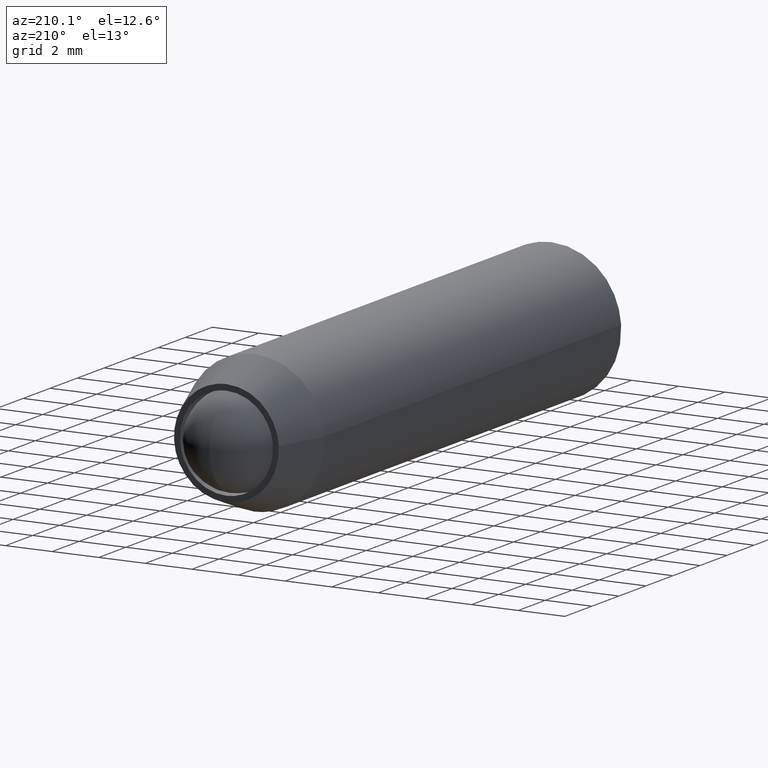
[diagram: clean part render]
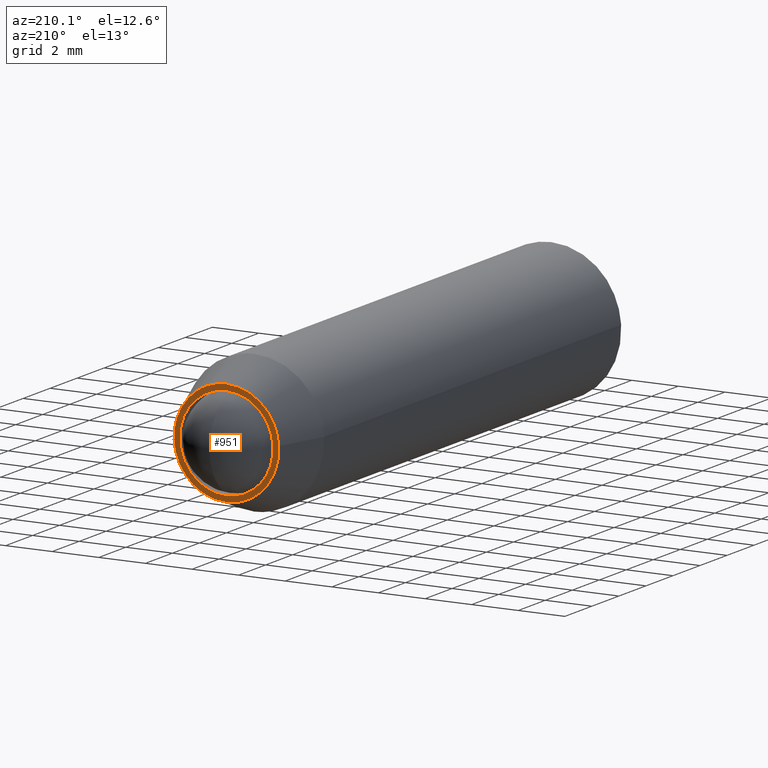
[diagram: same view with one face highlighted and labeled with its STEP entity id]
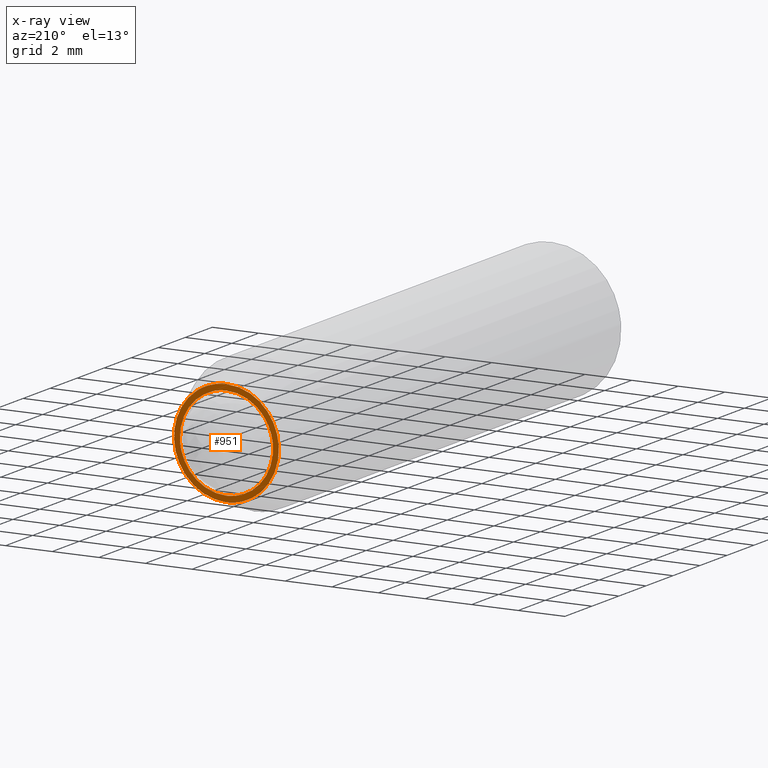
[diagram: x-ray of the same camera — body ghosted, the highlighted face saturated]
A machine part, auxiliary view. The second image highlights one B-rep face of the part: STEP entity #951.
The next image is the same camera in x-ray: the body ghosted, the highlighted face saturated — about 0% of this face is hidden behind the body in this view.
In plain terms, the highlighted face is a freeform B-spline surface patch.
Its self-contained STEP definition (entity closure, byte-faithful):
#100=CARTESIAN_POINT('',(1.996269596842803,1.387779E-016,-0.122097079084937));
#101=VERTEX_POINT('',#100);
#107=CARTESIAN_POINT('',(0.0,0.0,-2.0));
#108=VERTEX_POINT('',#107);
#109=CARTESIAN_POINT('',(0.0,0.0,-2.0));
#110=CARTESIAN_POINT('',(1.881412133782633,0.0,-2.000000000000000));
#111=CARTESIAN_POINT('',(1.996269596842803,1.387779E-016,-0.122097079084937));
#119=(BOUNDED_CURVE()B_SPLINE_CURVE(2,(#109,#110,#111),.UNSPECIFIED.,.F.,.U.)B_SPLINE_CURVE_WITH_KNOTS((3,3),(0.500000000000000,0.739332962239336),.UNSPECIFIED.)CURVE()GEOMETRIC_REPRESENTATION_ITEM()RATIONAL_B_SPLINE_CURVE((1.0,0.719603993286250,0.976072041667560))REPRESENTATION_ITEM(''));
#120=EDGE_CURVE('',#108,#101,#119,.T.);
#122=CARTESIAN_POINT('',(-1.986019052726100,1.419714E-016,0.236068469323887));
#123=VERTEX_POINT('',#122);
#124=CARTESIAN_POINT('',(-1.986019052726100,1.419714E-016,0.236068469323887));
#125=CARTESIAN_POINT('',(-2.000000000000000,0.0,0.118448239314300));
#126=CARTESIAN_POINT('',(-2.0,0.0,0.0));
#127=CARTESIAN_POINT('',(-2.000000000000000,0.0,-2.000000000000000));
#128=CARTESIAN_POINT('',(0.0,0.0,-2.0));
#136=(BOUNDED_CURVE()B_SPLINE_CURVE(2,(#124,#125,#126,#127,#128),.UNSPECIFIED.,.F.,.U.)B_SPLINE_CURVE_WITH_KNOTS((3,2,3),(0.229562473513879,0.250000000000000,0.500000000000000),.UNSPECIFIED.)CURVE()GEOMETRIC_REPRESENTATION_ITEM()RATIONAL_B_SPLINE_CURVE((0.956026754184427,0.976055948331580,1.0,0.707106781186548,1.0))REPRESENTATION_ITEM(''));
#137=EDGE_CURVE('',#123,#108,#136,.T.);
#181=CARTESIAN_POINT('',(0.0,0.0,2.0));
#182=VERTEX_POINT('',#181);
#183=CARTESIAN_POINT('',(0.0,0.0,2.0));
#184=CARTESIAN_POINT('',(-1.776349051884055,0.0,2.000000000000000));
#185=CARTESIAN_POINT('',(-1.986019052726100,1.419714E-016,0.236068469323887));
#193=(BOUNDED_CURVE()B_SPLINE_CURVE(2,(#183,#184,#185),.UNSPECIFIED.,.F.,.U.)B_SPLINE_CURVE_WITH_KNOTS((3,3),(0.0,0.229562473513880),.UNSPECIFIED.)CURVE()GEOMETRIC_REPRESENTATION_ITEM()RATIONAL_B_SPLINE_CURVE((1.0,0.731050832854968,0.956026754184427))REPRESENTATION_ITEM(''));
#194=EDGE_CURVE('',#182,#123,#193,.T.);
#196=CARTESIAN_POINT('',(1.996269596842803,1.387779E-016,-0.122097079084937));
#197=CARTESIAN_POINT('',(2.000000000000000,0.0,-0.061105526612444));
#198=CARTESIAN_POINT('',(2.0,0.0,0.0));
#199=CARTESIAN_POINT('',(2.000000000000000,0.0,2.000000000000000));
#200=CARTESIAN_POINT('',(0.0,0.0,2.0));
#208=(BOUNDED_CURVE()B_SPLINE_CURVE(2,(#196,#197,#198,#199,#200),.UNSPECIFIED.,.F.,.U.)B_SPLINE_CURVE_WITH_KNOTS((3,2,3),(0.739332962239337,0.750000000000000,1.0),.UNSPECIFIED.)CURVE()GEOMETRIC_REPRESENTATION_ITEM()RATIONAL_B_SPLINE_CURVE((0.976072041667562,0.987502787900299,1.0,0.707106781186548,1.0))REPRESENTATION_ITEM(''));
#209=EDGE_CURVE('',#101,#182,#208,.T.);
#481=CARTESIAN_POINT('',(0.791140442397695,-3.218887E-012,2.106323052242475));
#482=VERTEX_POINT('',#481);
#488=CARTESIAN_POINT('',(0.0,0.0,2.249999999999999));
#489=VERTEX_POINT('',#488);
#490=CARTESIAN_POINT('',(0.791140442397695,-3.218887E-012,2.106323052242474));
#491=CARTESIAN_POINT('',(0.408616618668138,0.0,2.249999999999999));
#492=CARTESIAN_POINT('',(0.0,0.0,2.249999999999999));
#500=(BOUNDED_CURVE()B_SPLINE_CURVE(2,(#490,#491,#492),.UNSPECIFIED.,.F.,.U.)B_SPLINE_CURVE_WITH_KNOTS((3,3),(0.440284170896473,0.500000000000000),.UNSPECIFIED.)CURVE()GEOMETRIC_REPRESENTATION_ITEM()RATIONAL_B_SPLINE_CURVE((0.893499554632784,0.930038554399016,1.0))REPRESENTATION_ITEM(''));
#501=EDGE_CURVE('',#482,#489,#500,.T.);
#503=CARTESIAN_POINT('',(-2.245803296449246,-1.485565E-012,0.137359213961566));
#504=VERTEX_POINT('',#503);
#505=CARTESIAN_POINT('',(0.0,0.0,2.249999999999999));
#506=CARTESIAN_POINT('',(-2.116588650522518,0.0,2.250000000000000));
#507=CARTESIAN_POINT('',(-2.245803296449245,-1.485565E-012,0.137359213961566));
#515=(BOUNDED_CURVE()B_SPLINE_CURVE(2,(#505,#506,#507),.UNSPECIFIED.,.F.,.U.)B_SPLINE_CURVE_WITH_KNOTS((3,3),(0.500000000000000,0.739332962240724),.UNSPECIFIED.)CURVE()GEOMETRIC_REPRESENTATION_ITEM()RATIONAL_B_SPLINE_CURVE((1.0,0.719603993284624,0.976072041670534))REPRESENTATION_ITEM(''));
#516=EDGE_CURVE('',#489,#504,#515,.T.);
#611=CARTESIAN_POINT('',(0.0,0.0,-2.250000000000001));
#612=VERTEX_POINT('',#611);
#613=CARTESIAN_POINT('',(-2.245803296449245,-1.485565E-012,0.137359213961566));
#614=CARTESIAN_POINT('',(-2.250000000000000,0.0,0.068743717429952));
#615=CARTESIAN_POINT('',(-2.250000000000000,0.0,-6.765950E-016));
#616=CARTESIAN_POINT('',(-2.250000000000000,0.0,-2.250000000000000));
#617=CARTESIAN_POINT('',(0.0,0.0,-2.250000000000001));
#625=(BOUNDED_CURVE()B_SPLINE_CURVE(2,(#613,#614,#615,#616,#617),.UNSPECIFIED.,.F.,.U.)B_SPLINE_CURVE_WITH_KNOTS((3,2,3),(0.739332962240723,0.750000000000000,1.0),.UNSPECIFIED.)CURVE()GEOMETRIC_REPRESENTATION_ITEM()RATIONAL_B_SPLINE_CURVE((0.976072041670533,0.987502787901923,1.0,0.707106781186547,1.0))REPRESENTATION_ITEM(''));
#626=EDGE_CURVE('',#504,#612,#625,.T.);
#628=CARTESIAN_POINT('',(0.0,0.0,-2.250000000000001));
#629=CARTESIAN_POINT('',(2.250000000000000,0.0,-2.250000000000000));
#630=CARTESIAN_POINT('',(2.250000000000000,0.0,-6.765950E-016));
#631=CARTESIAN_POINT('',(2.250000000000000,0.0,1.558371590286766));
#632=CARTESIAN_POINT('',(0.791140442397695,-3.218887E-012,2.106323052242474));
#640=(BOUNDED_CURVE()B_SPLINE_CURVE(2,(#628,#629,#630,#631,#632),.UNSPECIFIED.,.F.,.U.)B_SPLINE_CURVE_WITH_KNOTS((3,2,3),(0.0,0.250000000000000,0.440284170896473),.UNSPECIFIED.)CURVE()GEOMETRIC_REPRESENTATION_ITEM()RATIONAL_B_SPLINE_CURVE((1.0,0.707106781186547,1.0,0.777068226787532,0.893499554632784))REPRESENTATION_ITEM(''));
#641=EDGE_CURVE('',#612,#482,#640,.T.);
#934=CARTESIAN_POINT('',(-2.474720258543406,0.0,-2.474774991278128));
#935=CARTESIAN_POINT('',(-2.474720258543406,0.0,2.474775111977531));
#936=CARTESIAN_POINT('',(2.474732046852027,0.0,-2.474774991278128));
#937=CARTESIAN_POINT('',(2.474732046852027,0.0,2.474775111977531));
#938=B_SPLINE_SURFACE_WITH_KNOTS('',1,1,((#934,#936),(#935,#937)),.UNSPECIFIED.,.F.,.F.,.U.,(2,2),(2,2),(0.0,4.949550103255659),(0.0,4.949452305395433),.UNSPECIFIED.);
#939=ORIENTED_EDGE('',*,*,#626,.F.);
#940=ORIENTED_EDGE('',*,*,#516,.F.);
#941=ORIENTED_EDGE('',*,*,#501,.F.);
#942=ORIENTED_EDGE('',*,*,#641,.F.);
#943=EDGE_LOOP('',(#939,#940,#941,#942));
#944=FACE_OUTER_BOUND('',#943,.T.);
#945=ORIENTED_EDGE('',*,*,#120,.T.);
#946=ORIENTED_EDGE('',*,*,#209,.T.);
#947=ORIENTED_EDGE('',*,*,#194,.T.);
#948=ORIENTED_EDGE('',*,*,#137,.T.);
#949=EDGE_LOOP('',(#945,#946,#947,#948));
#950=FACE_BOUND('',#949,.T.);
#951=ADVANCED_FACE('',(#944,#950),#938,.T.);